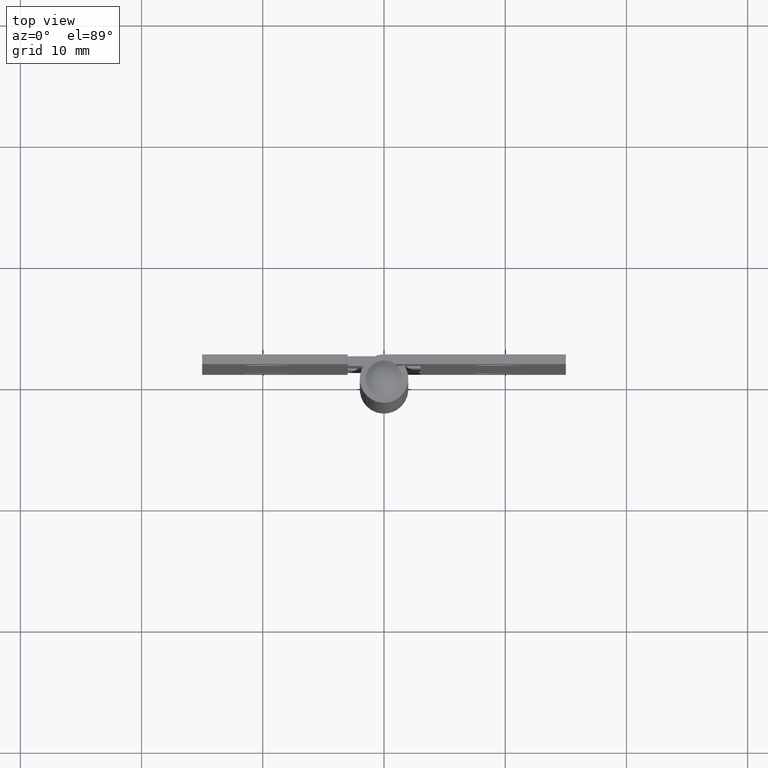
[diagram: clean part render]
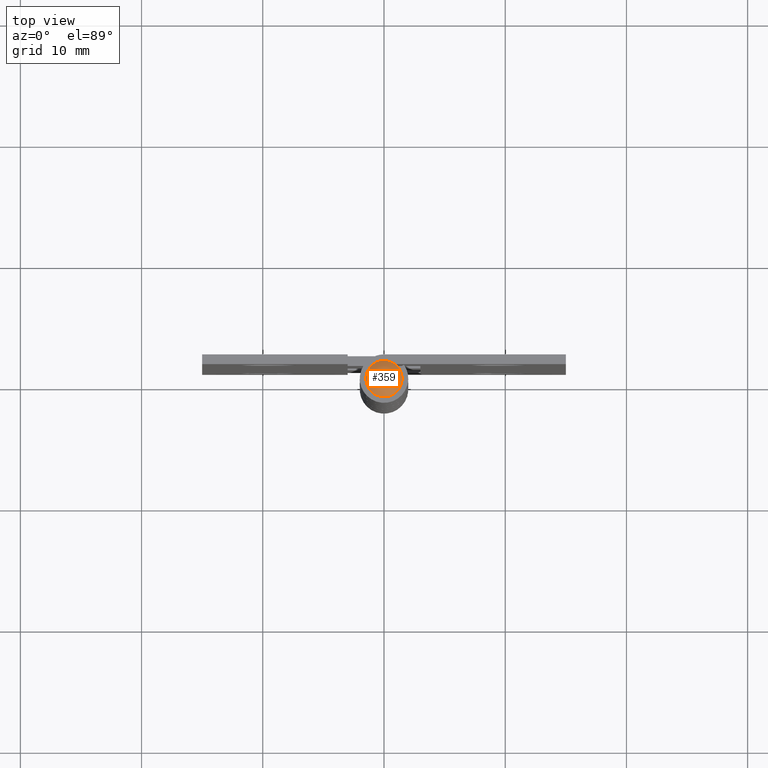
[diagram: same view with one face highlighted and labeled with its STEP entity id]
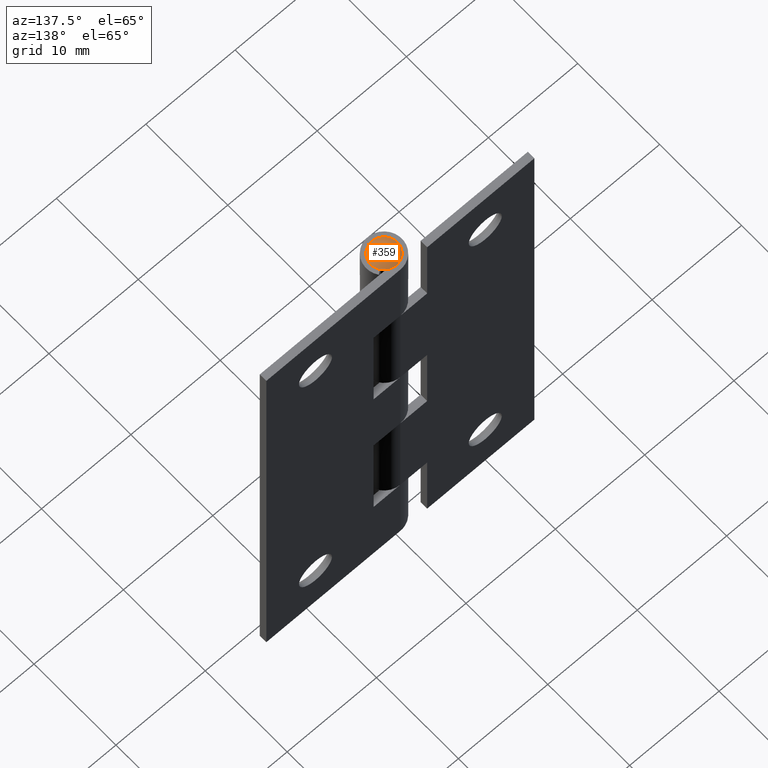
[diagram: same view with one face highlighted and labeled with its STEP entity id]
A machine part, top view. The second image highlights one B-rep face of the part: STEP entity #359.
A second angle (auxiliary view) of the same face is appended — the face is thin or edge-on in the first view.
In plain terms, the highlighted face is a freeform B-spline surface patch.
Its self-contained STEP definition (entity closure, byte-faithful):
#282=CARTESIAN_POINT('',(-1.379702370537127,-1.379702370537089,50.385972287562097));
#283=CARTESIAN_POINT('',(-0.801726894155021,-1.603453788309985,50.894544469810505));
#284=CARTESIAN_POINT('',(0.801726919511593,-1.603453788309985,50.894544469810469));
#285=CARTESIAN_POINT('',(1.379702401995221,-1.379702358358698,50.385972259881378));
#286=CARTESIAN_POINT('',(-1.603453788310012,-0.801726894154994,50.894544469810526));
#287=CARTESIAN_POINT('',(-0.956913002012677,-0.956913002012664,51.600000000000001));
#288=CARTESIAN_POINT('',(0.956913032277426,-0.956913002012664,51.599999999999973));
#289=CARTESIAN_POINT('',(1.603453822574503,-0.801726885930636,50.894544432423636));
#290=CARTESIAN_POINT('',(-1.603453788310012,0.801726919511621,50.894544469810526));
#291=CARTESIAN_POINT('',(-0.956913002012677,0.956913032277440,51.600000000000009));
#292=CARTESIAN_POINT('',(0.956913032277426,0.956913032277440,51.599999999999973));
#293=CARTESIAN_POINT('',(1.603453822574503,0.801726911287263,50.894544432423636));
#294=CARTESIAN_POINT('',(-1.379702358358736,1.379702401995259,50.385972259881420));
#295=CARTESIAN_POINT('',(-0.801726885930664,1.603453822574530,50.894544432423679));
#296=CARTESIAN_POINT('',(0.801726911287236,1.603453822574530,50.894544432423658));
#297=CARTESIAN_POINT('',(1.379702389816830,1.379702389816869,50.385972232200707));
#305=(BOUNDED_SURFACE()B_SPLINE_SURFACE(2,2,((#282,#286,#290,#294),(#283,#287,#291,#295),(#284,#288,#292,#296),(#285,#289,#293,#297)),.UNSPECIFIED.,.F.,.F.,.U.)B_SPLINE_SURFACE_WITH_KNOTS((3,1,3),(3,1,3),(0.057709207473695,1.0,1.942290822328627),(0.057709207473695,1.0,1.942290822328627),.UNSPECIFIED.)GEOMETRIC_REPRESENTATION_ITEM()RATIONAL_B_SPLINE_SURFACE(((1.387129604829416,1.193564802414708,1.193564802414708,1.387129617073366),(1.193564802414708,1.0,1.0,1.193564814658658),(1.193564802414708,1.0,1.0,1.193564814658658),(1.387129617073366,1.193564814658658,1.193564814658658,1.387129629317316)))REPRESENTATION_ITEM('')SURFACE());
#306=CARTESIAN_POINT('',(1.499999999999920,0.0,50.999999999999012));
#307=VERTEX_POINT('',#306);
#308=CARTESIAN_POINT('',(-1.499999999999920,0.0,50.999999999999012));
#309=VERTEX_POINT('',#308);
#310=CARTESIAN_POINT('',(1.499999999999920,0.0,50.999999999999012));
#311=CARTESIAN_POINT('',(1.499994103691053,-0.030664928564241,50.999999999999062));
#312=CARTESIAN_POINT('',(1.498910532151319,-0.067471747764966,50.999999999998927));
#313=CARTESIAN_POINT('',(1.495838789376201,-0.110299758600792,50.999999999999027));
#314=CARTESIAN_POINT('',(1.494065611883742,-0.134778937529542,50.999999999998977));
#315=CARTESIAN_POINT('',(1.477265219571710,-0.305801056788485,50.999999999999012));
#316=CARTESIAN_POINT('',(1.410776678946046,-0.551500586780226,50.999999999999083));
#317=CARTESIAN_POINT('',(1.247418558133906,-0.848254210631287,50.999999999998842));
#318=CARTESIAN_POINT('',(1.067499739498478,-1.067501880403888,50.999999999999162));
#319=CARTESIAN_POINT('',(0.848251155988974,-1.247421723033023,50.999999999998927));
#320=CARTESIAN_POINT('',(0.578480328645301,-1.395925454758943,50.999999999999027));
#321=CARTESIAN_POINT('',(0.282688969248076,-1.485642260208841,50.999999999999012));
#322=CARTESIAN_POINT('',(-0.049341938526012,-1.510124061595097,50.999999999998977));
#323=CARTESIAN_POINT('',(-0.404153858652282,-1.461988683821506,50.999999999999027));
#324=CARTESIAN_POINT('',(-0.736519447236775,-1.324320504377528,50.999999999999027));
#325=CARTESIAN_POINT('',(-1.013827240135067,-1.118585231451277,50.999999999999041));
#326=CARTESIAN_POINT('',(-1.245747634315080,-0.862781333723361,50.999999999998913));
#327=CARTESIAN_POINT('',(-1.444580064695416,-0.490801894304076,50.999999999999133));
#328=CARTESIAN_POINT('',(-1.500120994703114,-0.171816757665092,50.999999999999190));
#329=CARTESIAN_POINT('',(-1.499999999999920,0.0,50.999999999999012));
#330=B_SPLINE_CURVE_WITH_KNOTS('',3,(#310,#311,#312,#313,#314,#315,#316,#317,#318,#319,#320,#321,#322,#323,#324,#325,#326,#327,#328,#329),.UNSPECIFIED.,.F.,.U.,(4,1,1,1,1,1,1,1,1,1,1,1,1,1,1,1,1,4),(-0.000003817926613,0.091998122879574,0.110407646652993,0.128817170426411,0.165634961495611,0.625866713376890,0.883589408337987,1.178126214672159,1.472664926172708,1.730386095875034,2.098560458070423,2.393053423728371,2.724396581593521,3.166207401401814,3.460744156429987,3.755285659810671,4.197092270157667,4.712505233217965),.UNSPECIFIED.);
#331=EDGE_CURVE('',#307,#309,#330,.T.);
#332=ORIENTED_EDGE('',*,*,#331,.F.);
#333=CARTESIAN_POINT('',(-1.499999999999920,0.0,50.999999999999012));
#334=CARTESIAN_POINT('',(-1.499994104139103,0.030664928925165,50.999999999999027));
#335=CARTESIAN_POINT('',(-1.498910528836751,0.067471745094964,50.999999999999019));
#336=CARTESIAN_POINT('',(-1.495838801672221,0.110299768505659,50.999999999999012));
#337=CARTESIAN_POINT('',(-1.494075480306709,0.134780948742348,50.999999999998991));
#338=CARTESIAN_POINT('',(-1.481996348103135,0.256922704030150,50.999999999999112));
#339=CARTESIAN_POINT('',(-1.422881748229654,0.528204504539292,50.999999999998913));
#340=CARTESIAN_POINT('',(-1.254073946035061,0.853669191049221,50.999999999998870));
#341=CARTESIAN_POINT('',(-1.030372798713198,1.100307467572143,50.999999999999048));
#342=CARTESIAN_POINT('',(-0.807270004929213,1.274446280205997,50.999999999999147));
#343=CARTESIAN_POINT('',(-0.555198915315712,1.405240878912947,50.999999999998430));
#344=CARTESIAN_POINT('',(-0.281845841817357,1.480860763326936,50.999999999999709));
#345=CARTESIAN_POINT('',(0.012046756384293,1.509826337499651,50.999999999998323));
#346=CARTESIAN_POINT('',(0.319655833077228,1.479531926106657,51.000000000000142));
#347=CARTESIAN_POINT('',(0.634884503896767,1.371080175960546,50.999999999996710));
#348=CARTESIAN_POINT('',(0.878150330245570,1.225255991440378,51.000000000002167));
#349=CARTESIAN_POINT('',(1.083140116045428,1.048426755823200,50.999999999996781));
#350=CARTESIAN_POINT('',(1.255247680642485,0.838720825250901,50.999999999999623));
#351=CARTESIAN_POINT('',(1.441307732251229,0.490725329610535,50.999999999998948));
#352=CARTESIAN_POINT('',(1.500220778866982,0.196384578863682,50.999999999998742));
#353=CARTESIAN_POINT('',(1.499999999999920,0.0,50.999999999999012));
#354=B_SPLINE_CURVE_WITH_KNOTS('',3,(#333,#334,#335,#336,#337,#338,#339,#340,#341,#342,#343,#344,#345,#346,#347,#348,#349,#350,#351,#352,#353),.UNSPECIFIED.,.F.,.U.,(4,1,1,1,1,1,1,1,1,1,1,1,1,1,1,1,1,1,4),(-0.000003817926681,0.091998122879506,0.110407646652929,0.128817170426347,0.165634961495542,0.478598163066247,0.957224369594535,1.251759994228876,1.472664926172638,1.804018331698762,2.098560458070377,2.319453126585847,2.687576932433866,3.018939851931785,3.313475447871728,3.534379096461551,3.828921335794456,4.123460336526652,4.712505233217967),.UNSPECIFIED.);
#355=EDGE_CURVE('',#309,#307,#354,.T.);
#356=ORIENTED_EDGE('',*,*,#355,.F.);
#357=EDGE_LOOP('',(#332,#356));
#358=FACE_OUTER_BOUND('',#357,.T.);
#359=ADVANCED_FACE('',(#358),#305,.T.);